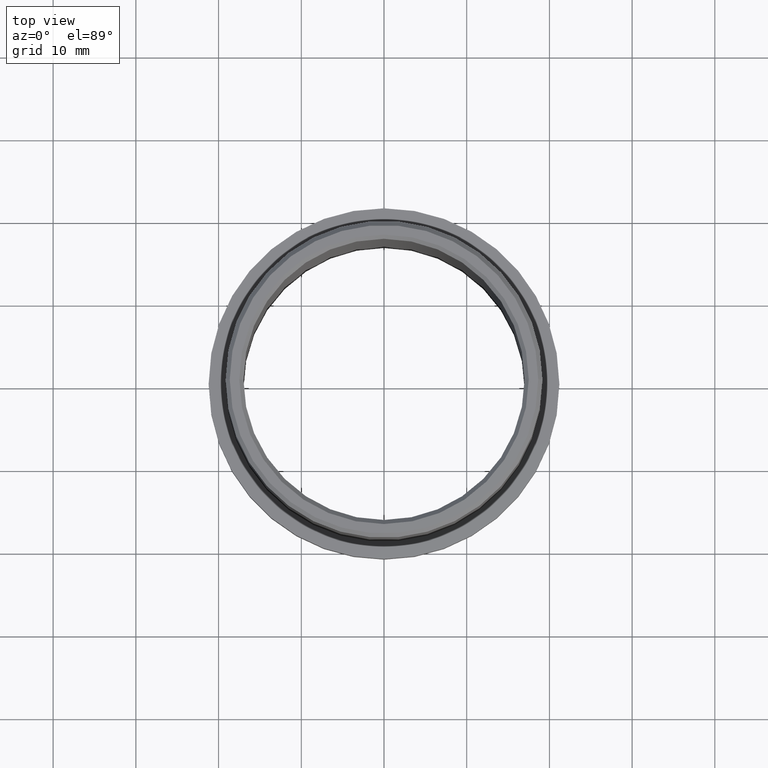
[diagram: clean part render]
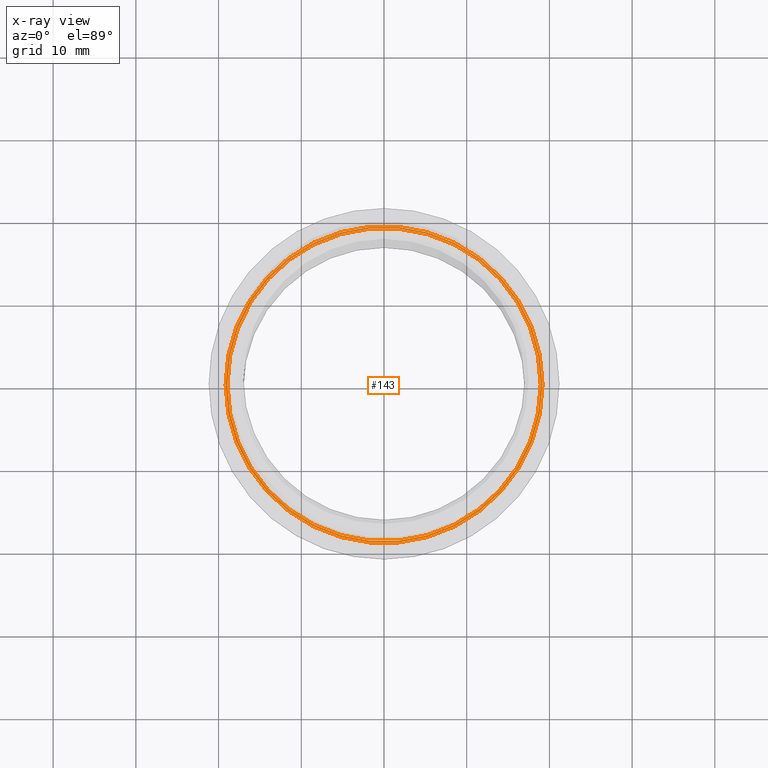
[diagram: x-ray — body ghosted, one internal face saturated and labeled with its STEP entity id]
A machine part, top view, then the same camera in x-ray: the body is ghosted and one INTERNAL B-rep face — a face not visible from any outside direction — is saturated and labeled: STEP entity #143.
In plain terms, the highlighted planar face has unit normal (0, 0, -1).
Its self-contained STEP definition (entity closure, byte-faithful):
#143 = ADVANCED_FACE ( 'NONE', ( #17746, #2602 ), #9183, .F. ) ;
#289 = CARTESIAN_POINT ( 'NONE',  ( 0.0000000000000000000, 0.0000000000000000000, -5.500000000000000000 ) ) ;
#2295 = DIRECTION ( 'NONE',  ( 1.000000000000000000, 0.0000000000000000000, 0.0000000000000000000 ) ) ;
#2602 = FACE_OUTER_BOUND ( 'NONE', #3562, .T. ) ;
#2721 = CARTESIAN_POINT ( 'NONE',  ( 0.0000000000000000000, 0.0000000000000000000, -5.500000000000000000 ) ) ;
#2854 = VERTEX_POINT ( 'NONE', #3335 ) ;
#3214 = CARTESIAN_POINT ( 'NONE',  ( -18.95000000000000300, 0.0000000000000000000, -5.500000000000000000 ) ) ;
#3335 = CARTESIAN_POINT ( 'NONE',  ( 19.15000000000000200, -2.345198620367181800E-015, -5.500000000000000000 ) ) ;
#3351 = AXIS2_PLACEMENT_3D ( 'NONE', #14521, #17644, #14768 ) ;
#3514 = ORIENTED_EDGE ( 'NONE', *, *, #7306, .F. ) ;
#3562 = EDGE_LOOP ( 'NONE', ( #15116, #5846 ) ) ;
#3713 = DIRECTION ( 'NONE',  ( -0.0000000000000000000, -0.0000000000000000000, 1.000000000000000000 ) ) ;
#3974 = CIRCLE ( 'NONE', #16483, 19.15000000000000200 ) ;
#4664 = VERTEX_POINT ( 'NONE', #14513 ) ;
#5125 = CARTESIAN_POINT ( 'NONE',  ( 0.0000000000000000000, 0.0000000000000000000, -5.500000000000000000 ) ) ;
#5846 = ORIENTED_EDGE ( 'NONE', *, *, #15386, .T. ) ;
#5933 = DIRECTION ( 'NONE',  ( -0.0000000000000000000, -0.0000000000000000000, 1.000000000000000000 ) ) ;
#6293 = DIRECTION ( 'NONE',  ( 0.0000000000000000000, 0.0000000000000000000, -1.000000000000000000 ) ) ;
#6659 = AXIS2_PLACEMENT_3D ( 'NONE', #2721, #17147, #9974 ) ;
#7306 = EDGE_CURVE ( 'NONE', #17721, #9040, #13664, .T. ) ;
#7562 = CARTESIAN_POINT ( 'NONE',  ( 18.95000000000000300, -2.320705684384234700E-015, -5.500000000000000000 ) ) ;
#9040 = VERTEX_POINT ( 'NONE', #3214 ) ;
#9183 = PLANE ( 'NONE',  #10996 ) ;
#9245 = DIRECTION ( 'NONE',  ( 1.000000000000000000, 0.0000000000000000000, 0.0000000000000000000 ) ) ;
#9658 = EDGE_LOOP ( 'NONE', ( #14648, #3514 ) ) ;
#9974 = DIRECTION ( 'NONE',  ( 1.000000000000000000, 0.0000000000000000000, 0.0000000000000000000 ) ) ;
#10996 = AXIS2_PLACEMENT_3D ( 'NONE', #289, #6293, #9245 ) ;
#13078 = DIRECTION ( 'NONE',  ( 1.000000000000000000, 0.0000000000000000000, 0.0000000000000000000 ) ) ;
#13262 = CARTESIAN_POINT ( 'NONE',  ( 0.0000000000000000000, 0.0000000000000000000, -5.500000000000000000 ) ) ;
#13664 = CIRCLE ( 'NONE', #17744, 18.95000000000000300 ) ;
#14200 = CIRCLE ( 'NONE', #6659, 19.15000000000000200 ) ;
#14513 = CARTESIAN_POINT ( 'NONE',  ( -19.15000000000000200, 0.0000000000000000000, -5.500000000000000000 ) ) ;
#14521 = CARTESIAN_POINT ( 'NONE',  ( 0.0000000000000000000, 0.0000000000000000000, -5.500000000000000000 ) ) ;
#14648 = ORIENTED_EDGE ( 'NONE', *, *, #16660, .F. ) ;
#14768 = DIRECTION ( 'NONE',  ( 1.000000000000000000, 0.0000000000000000000, 0.0000000000000000000 ) ) ;
#15116 = ORIENTED_EDGE ( 'NONE', *, *, #17109, .T. ) ;
#15386 = EDGE_CURVE ( 'NONE', #2854, #4664, #14200, .T. ) ;
#15447 = CIRCLE ( 'NONE', #3351, 18.95000000000000300 ) ;
#16483 = AXIS2_PLACEMENT_3D ( 'NONE', #13262, #5933, #13078 ) ;
#16660 = EDGE_CURVE ( 'NONE', #9040, #17721, #15447, .T. ) ;
#17109 = EDGE_CURVE ( 'NONE', #4664, #2854, #3974, .T. ) ;
#17147 = DIRECTION ( 'NONE',  ( -0.0000000000000000000, -0.0000000000000000000, 1.000000000000000000 ) ) ;
#17644 = DIRECTION ( 'NONE',  ( -0.0000000000000000000, -0.0000000000000000000, 1.000000000000000000 ) ) ;
#17721 = VERTEX_POINT ( 'NONE', #7562 ) ;
#17744 = AXIS2_PLACEMENT_3D ( 'NONE', #5125, #3713, #2295 ) ;
#17746 = FACE_BOUND ( 'NONE', #9658, .T. ) ;